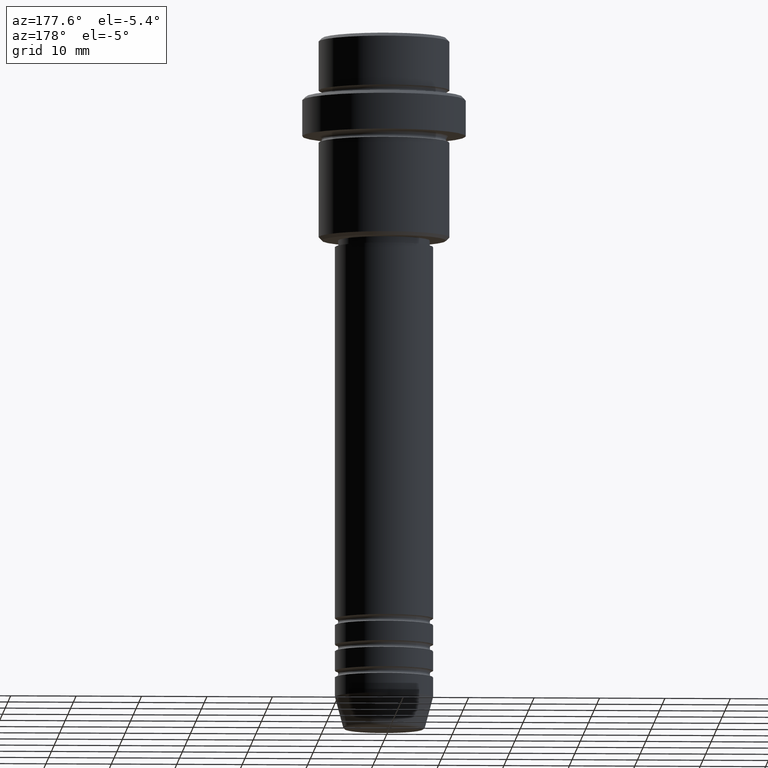
[diagram: clean part render]
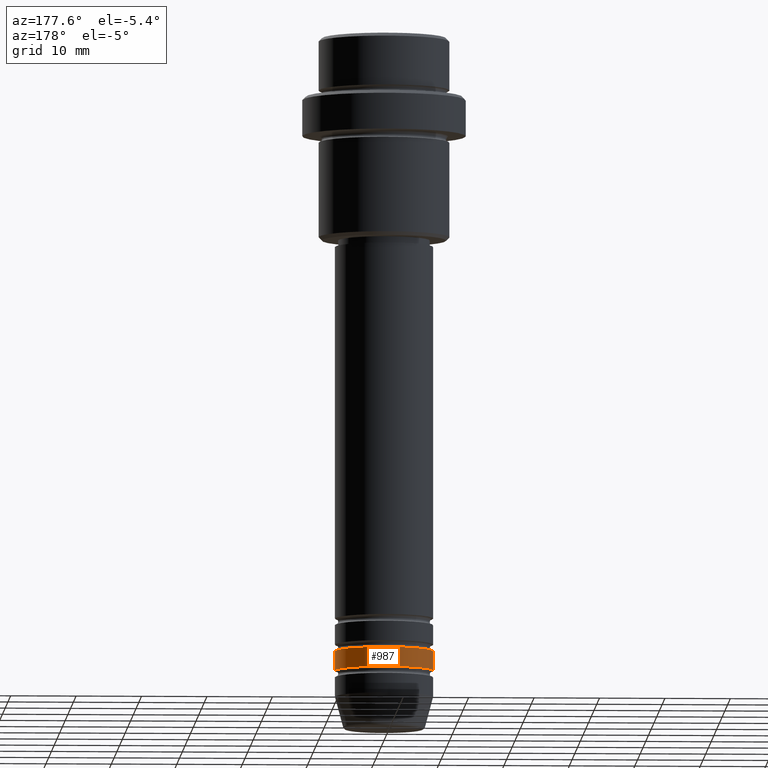
[diagram: same view with one face highlighted and labeled with its STEP entity id]
A machine part, auxiliary view. The second image highlights one B-rep face of the part: STEP entity #987.
In plain terms, the highlighted cylindrical surface (partial cylindrical patch) has radius 7.5 mm, axis along (-0, -0, 1).
Its self-contained STEP definition (entity closure, byte-faithful):
#44 = VERTEX_POINT ( 'NONE', #1292 ) ;
#80 = DIRECTION ( 'NONE',  ( 1.000000000000000000, 0.000000000000000000, 0.000000000000000000 ) ) ;
#83 = DIRECTION ( 'NONE',  ( 1.000000000000000000, 0.000000000000000000, 0.000000000000000000 ) ) ;
#90 = DIRECTION ( 'NONE',  ( -0.000000000000000000, -0.000000000000000000, 1.000000000000000000 ) ) ;
#93 = CARTESIAN_POINT ( 'NONE',  ( 0.000000000000000000, 0.000000000000000000, 0.000000000000000000 ) ) ;
#148 = CARTESIAN_POINT ( 'NONE',  ( -7.500000000000000000, 9.184850993605147944E-16, 0.000000000000000000 ) ) ;
#153 = CIRCLE ( 'NONE', #457, 7.500000000000000000 ) ;
#190 = DIRECTION ( 'NONE',  ( -0.000000000000000000, -0.000000000000000000, 1.000000000000000000 ) ) ;
#197 = CYLINDRICAL_SURFACE ( 'NONE', #297, 7.500000000000000000 ) ;
#200 = CARTESIAN_POINT ( 'NONE',  ( 0.000000000000000000, 0.000000000000000000, -96.99999999999987210 ) ) ;
#227 = ORIENTED_EDGE ( 'NONE', *, *, #1164, .T. ) ;
#233 = CIRCLE ( 'NONE', #1022, 7.500000000000000000 ) ;
#260 = DIRECTION ( 'NONE',  ( -0.000000000000000000, -0.000000000000000000, 1.000000000000000000 ) ) ;
#297 = AXIS2_PLACEMENT_3D ( 'NONE', #93, #968, #1384 ) ;
#313 = CARTESIAN_POINT ( 'NONE',  ( 0.000000000000000000, 0.000000000000000000, -93.99999999999988631 ) ) ;
#457 = AXIS2_PLACEMENT_3D ( 'NONE', #313, #190, #83 ) ;
#519 = VECTOR ( 'NONE', #613, 1000.000000000000000 ) ;
#533 = CARTESIAN_POINT ( 'NONE',  ( 7.500000000000000000, 0.000000000000000000, 0.000000000000000000 ) ) ;
#590 = VERTEX_POINT ( 'NONE', #1024 ) ;
#609 = VERTEX_POINT ( 'NONE', #1305 ) ;
#613 = DIRECTION ( 'NONE',  ( -0.000000000000000000, -0.000000000000000000, 1.000000000000000000 ) ) ;
#691 = EDGE_CURVE ( 'NONE', #700, #44, #767, .T. ) ;
#700 = VERTEX_POINT ( 'NONE', #726 ) ;
#706 = EDGE_LOOP ( 'NONE', ( #1328, #227, #894, #1210 ) ) ;
#726 = CARTESIAN_POINT ( 'NONE',  ( 7.500000000000000000, 0.000000000000000000, -96.99999999999987210 ) ) ;
#767 = LINE ( 'NONE', #533, #519 ) ;
#894 = ORIENTED_EDGE ( 'NONE', *, *, #900, .F. ) ;
#900 = EDGE_CURVE ( 'NONE', #44, #590, #153, .T. ) ;
#968 = DIRECTION ( 'NONE',  ( -0.000000000000000000, -0.000000000000000000, 1.000000000000000000 ) ) ;
#987 = ADVANCED_FACE ( 'NONE', ( #1189 ), #197, .T. ) ;
#1022 = AXIS2_PLACEMENT_3D ( 'NONE', #200, #90, #80 ) ;
#1024 = CARTESIAN_POINT ( 'NONE',  ( -7.500000000000000000, 9.184850993605147944E-16, -93.99999999999988631 ) ) ;
#1150 = LINE ( 'NONE', #148, #1262 ) ;
#1164 = EDGE_CURVE ( 'NONE', #609, #590, #1150, .T. ) ;
#1189 = FACE_OUTER_BOUND ( 'NONE', #706, .T. ) ;
#1210 = ORIENTED_EDGE ( 'NONE', *, *, #691, .F. ) ;
#1262 = VECTOR ( 'NONE', #260, 1000.000000000000000 ) ;
#1292 = CARTESIAN_POINT ( 'NONE',  ( 7.500000000000000000, 0.000000000000000000, -93.99999999999988631 ) ) ;
#1305 = CARTESIAN_POINT ( 'NONE',  ( -7.500000000000000000, 9.184850993605147944E-16, -96.99999999999987210 ) ) ;
#1328 = ORIENTED_EDGE ( 'NONE', *, *, #1355, .T. ) ;
#1355 = EDGE_CURVE ( 'NONE', #700, #609, #233, .T. ) ;
#1384 = DIRECTION ( 'NONE',  ( 1.000000000000000000, 0.000000000000000000, 0.000000000000000000 ) ) ;